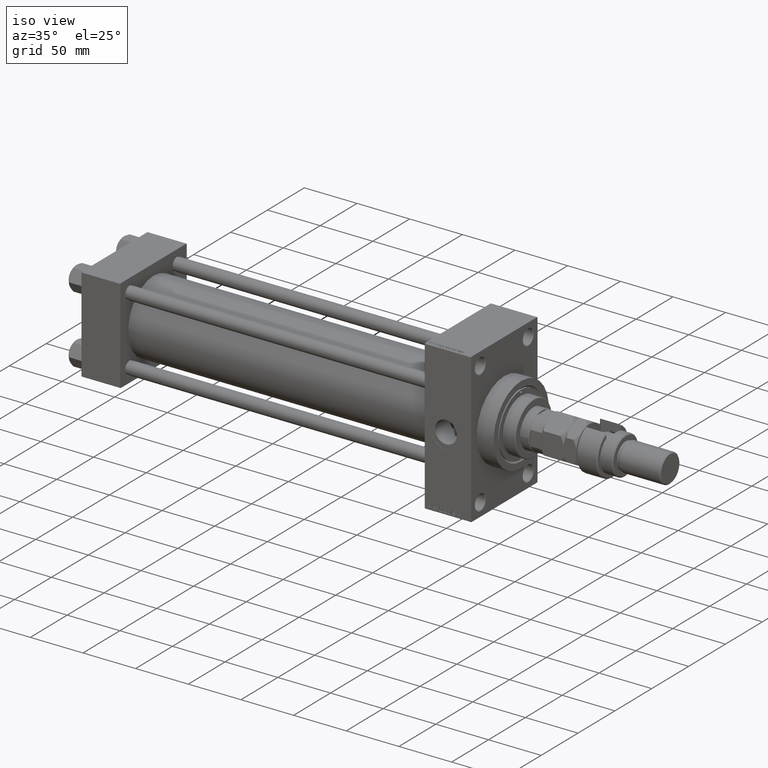
[diagram: clean part render]
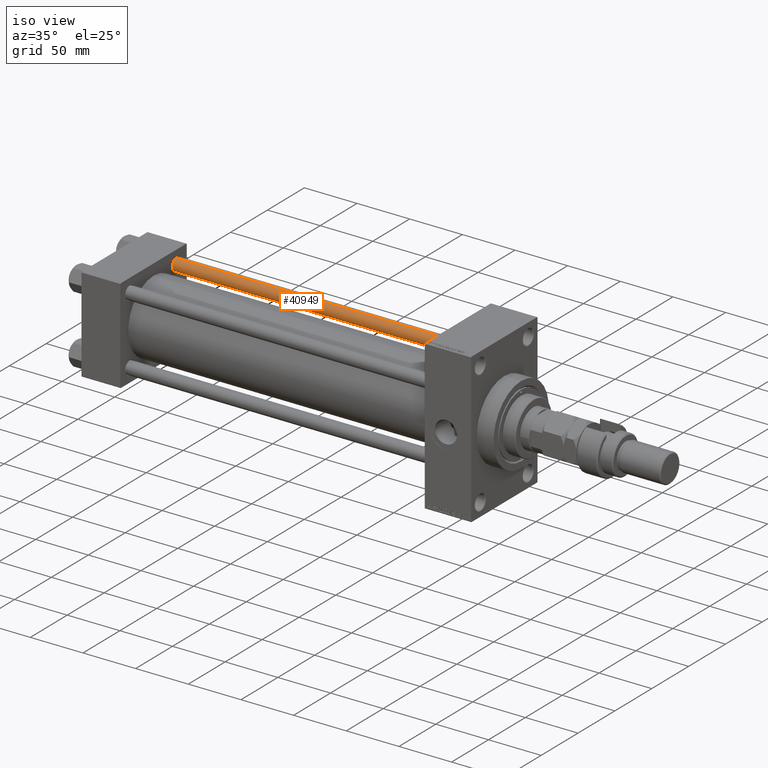
[diagram: same view with one face highlighted and labeled with its STEP entity id]
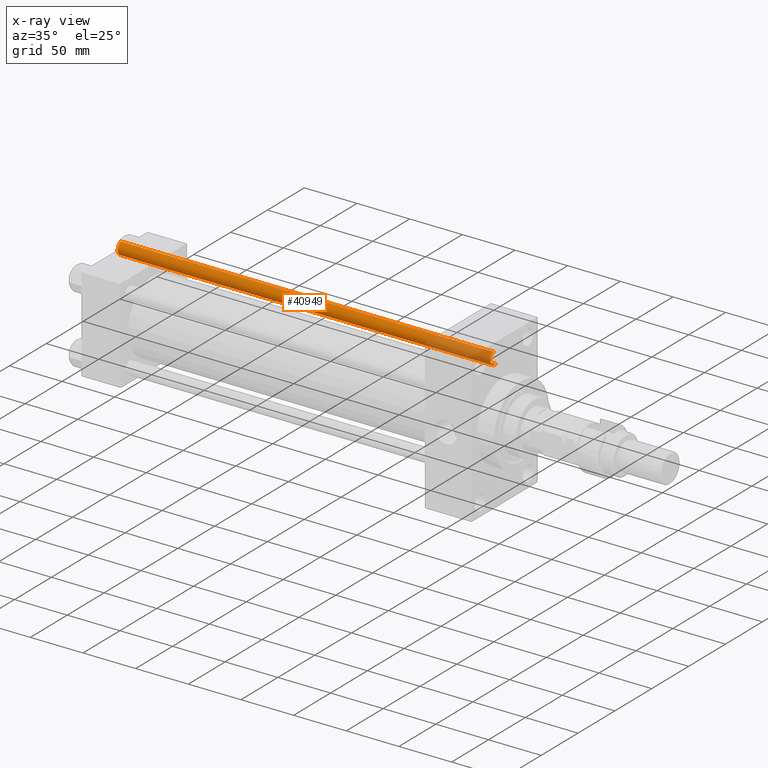
[diagram: x-ray of the same camera — body ghosted, the highlighted face saturated]
A machine part, iso view. The second image highlights one B-rep face of the part: STEP entity #40949.
The next image is the same camera in x-ray: the body ghosted, the highlighted face saturated — about 16% of this face is hidden behind the body in this view.
In plain terms, the highlighted cylindrical surface (edge-blend (fillet) strip) has radius 6 mm, axis along (-1, -0, 0).
Its self-contained STEP definition (entity closure, byte-faithful):
#813 = DIRECTION ( 'NONE',  ( -0.000000000000000000, -0.000000000000000000, -1.000000000000000000 ) ) ;
#2544 = ORIENTED_EDGE ( 'NONE', *, *, #47644, .T. ) ;
#4079 = AXIS2_PLACEMENT_3D ( 'NONE', #38318, #37820, #14652 ) ;
#4796 = ORIENTED_EDGE ( 'NONE', *, *, #23219, .F. ) ;
#8063 = DIRECTION ( 'NONE',  ( 1.000000000000000000, 0.000000000000000000, 0.000000000000000000 ) ) ;
#9385 = DIRECTION ( 'NONE',  ( -0.000000000000000000, -0.000000000000000000, 1.000000000000000000 ) ) ;
#9883 = CARTESIAN_POINT ( 'NONE',  ( 0.000000000000000000, 0.000000000000000000, 0.5000000000001114664 ) ) ;
#12491 = LINE ( 'NONE', #35672, #16355 ) ;
#14652 = DIRECTION ( 'NONE',  ( -1.000000000000000000, 0.000000000000000000, 0.000000000000000000 ) ) ;
#16355 = VECTOR ( 'NONE', #813, 1000.000000000000000 ) ;
#18029 = DIRECTION ( 'NONE',  ( -0.000000000000000000, -0.000000000000000000, -1.000000000000000000 ) ) ;
#18866 = AXIS2_PLACEMENT_3D ( 'NONE', #9883, #9385, #36124 ) ;
#19749 = CARTESIAN_POINT ( 'NONE',  ( 0.000000000000000000, 0.000000000000000000, 354.5000000000000000 ) ) ;
#19799 = EDGE_CURVE ( 'NONE', #33837, #49044, #12491, .T. ) ;
#21858 = LINE ( 'NONE', #46032, #42611 ) ;
#23219 = EDGE_CURVE ( 'NONE', #27145, #48787, #21858, .T. ) ;
#23315 = CARTESIAN_POINT ( 'NONE',  ( -6.000000000000000888, 0.000000000000000000, 354.5000000000000000 ) ) ;
#24624 = EDGE_CURVE ( 'NONE', #27145, #33837, #26406, .T. ) ;
#25842 = FACE_OUTER_BOUND ( 'NONE', #48687, .T. ) ;
#26406 = CIRCLE ( 'NONE', #45926, 6.000000000000000888 ) ;
#27145 = VERTEX_POINT ( 'NONE', #30936 ) ;
#28159 = ORIENTED_EDGE ( 'NONE', *, *, #19799, .T. ) ;
#30936 = CARTESIAN_POINT ( 'NONE',  ( 6.000000000000000888, 7.347880794884120722E-16, 354.5000000000000000 ) ) ;
#33753 = CYLINDRICAL_SURFACE ( 'NONE', #4079, 6.000000000000000888 ) ;
#33837 = VERTEX_POINT ( 'NONE', #23315 ) ;
#34547 = CARTESIAN_POINT ( 'NONE',  ( -6.000000000000000888, 0.000000000000000000, 0.5000000000001114664 ) ) ;
#34711 = ORIENTED_EDGE ( 'NONE', *, *, #24624, .T. ) ;
#35672 = CARTESIAN_POINT ( 'NONE',  ( -6.000000000000000888, 0.000000000000000000, 355.0000000000000000 ) ) ;
#36124 = DIRECTION ( 'NONE',  ( 1.000000000000000000, 0.000000000000000000, 0.000000000000000000 ) ) ;
#37820 = DIRECTION ( 'NONE',  ( -0.000000000000000000, -0.000000000000000000, -1.000000000000000000 ) ) ;
#38318 = CARTESIAN_POINT ( 'NONE',  ( 0.000000000000000000, 0.000000000000000000, 355.0000000000000000 ) ) ;
#40240 = CARTESIAN_POINT ( 'NONE',  ( 6.000000000000000888, 7.347880794884120722E-16, 0.5000000000001114664 ) ) ;
#40949 = ADVANCED_FACE ( 'NONE', ( #25842 ), #33753, .T. ) ;
#42611 = VECTOR ( 'NONE', #18029, 1000.000000000000000 ) ;
#45926 = AXIS2_PLACEMENT_3D ( 'NONE', #19749, #46490, #8063 ) ;
#46032 = CARTESIAN_POINT ( 'NONE',  ( 6.000000000000000888, 7.347880794884120722E-16, 355.0000000000000000 ) ) ;
#46490 = DIRECTION ( 'NONE',  ( 0.000000000000000000, 0.000000000000000000, -1.000000000000000000 ) ) ;
#46533 = CIRCLE ( 'NONE', #18866, 6.000000000000000888 ) ;
#47644 = EDGE_CURVE ( 'NONE', #49044, #48787, #46533, .T. ) ;
#48687 = EDGE_LOOP ( 'NONE', ( #4796, #34711, #28159, #2544 ) ) ;
#48787 = VERTEX_POINT ( 'NONE', #40240 ) ;
#49044 = VERTEX_POINT ( 'NONE', #34547 ) ;